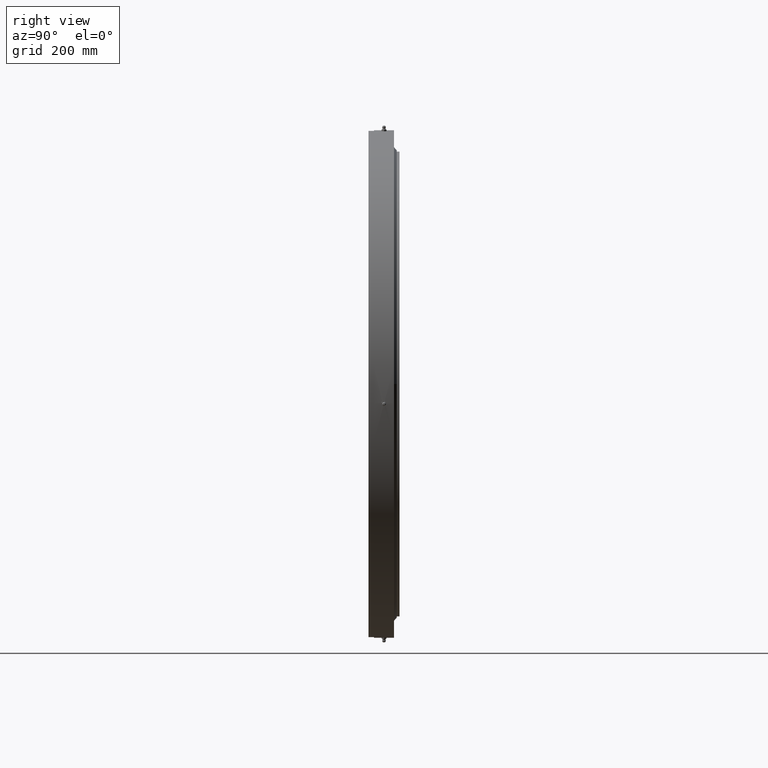
[diagram: clean part render]
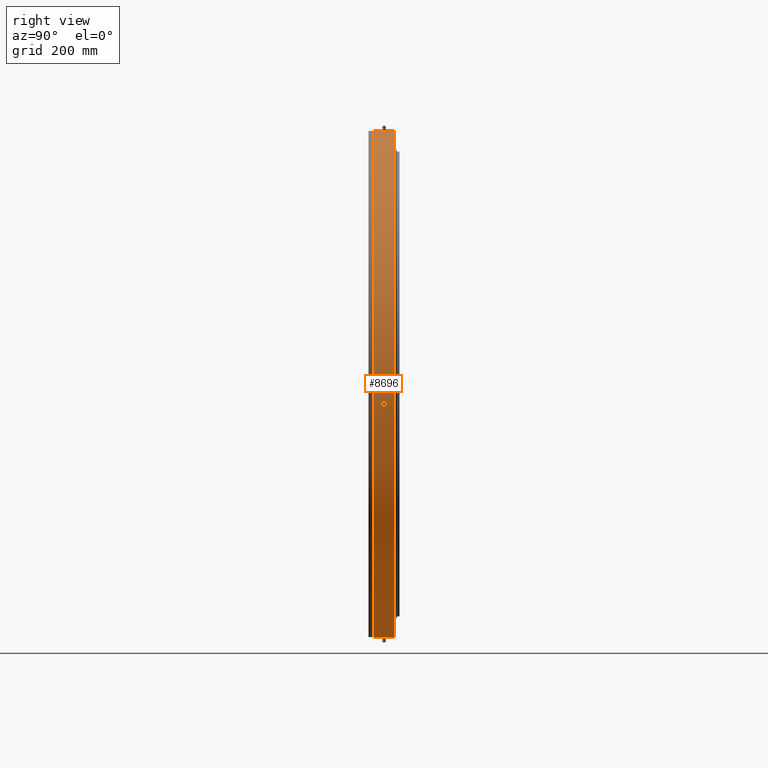
[diagram: same view with one face highlighted and labeled with its STEP entity id]
A machine part, right view. The second image highlights one B-rep face of the part: STEP entity #8696.
In plain terms, the highlighted cylindrical surface (partial cylindrical patch) has radius 458 mm, axis along (-0, 1, -0).
Its self-contained STEP definition (entity closure, byte-faithful):
#294 = CARTESIAN_POINT ( 'NONE',  ( 0.0000000000000000000, -18.00000000000005700, -2.297141635296116100E-015 ) ) ;
#314 = CARTESIAN_POINT ( 'NONE',  ( 33.63007289636212200, -2.638805930498227900, 456.7636641629059700 ) ) ;
#335 = CARTESIAN_POINT ( 'NONE',  ( 456.8165205205133400, 1.751985350448126600, -32.90414811253361200 ) ) ;
#401 = CARTESIAN_POINT ( 'NONE',  ( 38.56147788196833700, -2.313874280114101500, 456.3737925274480700 ) ) ;
#424 = CARTESIAN_POINT ( 'NONE',  ( 36.16308233546825300, -3.499918867989872100, 456.5701299794257600 ) ) ;
#529 = CARTESIAN_POINT ( 'NONE',  ( 37.47902702774766200, 3.146596247737587500, 456.4639827979106000 ) ) ;
#559 = CARTESIAN_POINT ( 'NONE',  ( 456.4985276661296300, 3.322150589918922800, -37.05589423200735400 ) ) ;
#569 = CARTESIAN_POINT ( 'NONE',  ( 33.30396047812804000, 2.311675416209404000, 456.7875569785331900 ) ) ;
#593 = EDGE_CURVE ( 'NONE', #2211, #6134, #6821, .T. ) ;
#639 = EDGE_CURVE ( 'NONE', #4509, #3712, #6229, .T. ) ;
#662 = B_SPLINE_CURVE_WITH_KNOTS ( 'NONE', 3,
 ( #9435, #1213, #2029, #6961, #1177, #6135, #335, #1746, #6683, #5859, #4729, #9661, #3910, #8819, #3088, #7989, #2259, #7181, #1393, #6355, #559, #5520, #10447, #4687, #9625, #3857, #8781, #3053, #7955, #2214, #7140, #1357 ),
 .UNSPECIFIED., .F., .F.,
 ( 4, 2, 2, 2, 2, 2, 2, 2, 2, 2, 2, 2, 2, 2, 2, 4 ),
 ( 0.01094264028078893000, 0.01162640092653727100, 0.01231016157228561100, 0.01299392221803395200, 0.01367768286378229200, 0.01436144350953063400, 0.01504520415527897300, 0.01572896480102731500, 0.01641272544677565400, 0.01709648609252399600, 0.01778024673827233900, 0.01846400738402067700, 0.01914776802976901600, 0.01983152867551735800, 0.02051528932126570100, 0.02188281061276238500 ),
 .UNSPECIFIED. ) ;
#688 = CARTESIAN_POINT ( 'NONE',  ( 456.4472106017494800, -3.037490623701535300, -37.68262919072881100 ) ) ;
#738 = EDGE_CURVE ( 'NONE', #6134, #2211, #5222, .T. ) ;
#824 = CARTESIAN_POINT ( 'NONE',  ( 456.3001996832415400, 6.997187067039027100E-009, -39.42242723417691500 ) ) ;
#849 = ORIENTED_EDGE ( 'NONE', *, *, #738, .T. ) ;
#1108 = DIRECTION ( 'NONE',  ( -0.0000000000000000000, 1.000000000000000000, -0.0000000000000000000 ) ) ;
#1114 = CARTESIAN_POINT ( 'NONE',  ( 32.44400589804343600, 6.997186051736657700E-009, 456.8494133533365600 ) ) ;
#1155 = CARTESIAN_POINT ( 'NONE',  ( 34.18465193305488000, -3.036912168861128200, 456.7225038716335300 ) ) ;
#1177 = CARTESIAN_POINT ( 'NONE',  ( 456.8367194834772200, 1.127687969078998700, -32.62237464594562700 ) ) ;
#1213 = CARTESIAN_POINT ( 'NONE',  ( 456.8494133533364400, 0.2283788053920517100, -32.44400589804503500 ) ) ;
#1357 = CARTESIAN_POINT ( 'NONE',  ( 456.3001996832415400, 6.997187067039027100E-009, -39.42242723417691500 ) ) ;
#1371 = CARTESIAN_POINT ( 'NONE',  ( 36.83482393395948400, 3.389072712100796200, 456.5164243995917600 ) ) ;
#1393 = CARTESIAN_POINT ( 'NONE',  ( 456.5521743773225000, 3.477621319007807800, -36.38903780224322300 ) ) ;
#1421 = EDGE_CURVE ( 'NONE', #7864, #2201, #8457, .T. ) ;
#1436 = AXIS2_PLACEMENT_3D ( 'NONE', #2732, #7651, #1900 ) ;
#1469 = DIRECTION ( 'NONE',  ( -0.0000000000000000000, 1.000000000000000000, -0.0000000000000000000 ) ) ;
#1537 = CARTESIAN_POINT ( 'NONE',  ( 456.4008741757257300, -2.636754973301240800, -38.23961472035456700 ) ) ;
#1596 = ORIENTED_EDGE ( 'NONE', *, *, #2850, .T. ) ;
#1628 = CARTESIAN_POINT ( 'NONE',  ( 39.42242723417532300, 6.997186012686878800E-009, 456.3001996832416600 ) ) ;
#1746 = CARTESIAN_POINT ( 'NONE',  ( 456.7980576167918800, 2.135340112929585500, -33.15947739344214500 ) ) ;
#1788 = CARTESIAN_POINT ( 'NONE',  ( 32.44400589804343600, 6.997186051736657700E-009, 456.8494133533365600 ) ) ;
#1874 = CARTESIAN_POINT ( 'NONE',  ( 0.0000000000000000000, 17.99999999999999600, 458.0000000000000600 ) ) ;
#1900 = DIRECTION ( 'NONE',  ( 0.0000000000000000000, 0.0000000000000000000, 1.000000000000000000 ) ) ;
#1970 = CARTESIAN_POINT ( 'NONE',  ( 32.46683833773523300, -0.4604141897430681400, 456.8477934815742900 ) ) ;
#2018 = CARTESIAN_POINT ( 'NONE',  ( 456.7071674364469800, -3.146551052262213800, -34.38906957822560200 ) ) ;
#2029 = CARTESIAN_POINT ( 'NONE',  ( 456.8478467209998800, 0.4553524808289428100, -32.46608919137686700 ) ) ;
#2123 = CARTESIAN_POINT ( 'NONE',  ( 36.83988223878230900, -3.387877818144095600, 456.5160173716268400 ) ) ;
#2201 = VERTEX_POINT ( 'NONE', #7490 ) ;
#2211 = VERTEX_POINT ( 'NONE', #7878 ) ;
#2214 = CARTESIAN_POINT ( 'NONE',  ( 456.3082216562515900, 0.9217468567132519600, -39.32985430323964900 ) ) ;
#2237 = CARTESIAN_POINT ( 'NONE',  ( 36.38903780224162400, 3.477621319007808200, 456.5521743773226700 ) ) ;
#2259 = CARTESIAN_POINT ( 'NONE',  ( 456.6064739588368300, 3.499804488246622800, -35.70127715019052800 ) ) ;
#2283 = CARTESIAN_POINT ( 'NONE',  ( 456.3737925274479000, -2.313874280114100100, -38.56147788196992800 ) ) ;
#2392 = CARTESIAN_POINT ( 'NONE',  ( 456.8163464086238200, -1.755852400395232900, -32.90656041679297800 ) ) ;
#2515 = FACE_OUTER_BOUND ( 'NONE', #10721, .T. ) ;
#2610 = CARTESIAN_POINT ( 'NONE',  ( 39.24416537009882000, -1.128299341885090000, 456.3155741411224500 ) ) ;
#2732 = CARTESIAN_POINT ( 'NONE',  ( 0.0000000000000000000, 17.99999999999999600, 0.0000000000000000000 ) ) ;
#2764 = AXIS2_PLACEMENT_3D ( 'NONE', #7756, #3618, #9515 ) ;
#2783 = CARTESIAN_POINT ( 'NONE',  ( 456.5160173716267300, -3.387877818144098300, -36.83988223878390800 ) ) ;
#2803 = CARTESIAN_POINT ( 'NONE',  ( 32.55606951202476300, -0.9088808497699746300, 456.8414433242238600 ) ) ;
#2825 = CARTESIAN_POINT ( 'NONE',  ( 456.3021547226748600, -0.4586430792446614100, -39.39981690613055300 ) ) ;
#2850 = EDGE_CURVE ( 'NONE', #5891, #3712, #5265, .T. ) ;
#2955 = CARTESIAN_POINT ( 'NONE',  ( 37.47956188346891100, -3.146205962783411800, 456.4639381137893100 ) ) ;
#3053 = CARTESIAN_POINT ( 'NONE',  ( 456.3399669074587500, 1.757443701697198200, -38.95960677233472300 ) ) ;
#3067 = CARTESIAN_POINT ( 'NONE',  ( 35.70127715018894300, 3.499804488246623300, 456.6064739588369400 ) ) ;
#3088 = CARTESIAN_POINT ( 'NONE',  ( 456.6585556972191300, 3.387789115033657900, -35.02875311164387300 ) ) ;
#3204 = CARTESIAN_POINT ( 'NONE',  ( 456.7875455133811300, -2.312152344299460700, -33.30412836870712600 ) ) ;
#3228 = CARTESIAN_POINT ( 'NONE',  ( 38.95960677233313900, 1.757443701697203800, 456.3399669074589700 ) ) ;
#3349 = CARTESIAN_POINT ( 'NONE',  ( 5.608882340094878600E-014, 17.99999999999999600, -458.0000000000000600 ) ) ;
#3390 = LINE ( 'NONE', #7685, #9962 ) ;
#3420 = CARTESIAN_POINT ( 'NONE',  ( 32.90414811253202000, 1.751985350448127300, 456.8165205205135100 ) ) ;
#3617 = CARTESIAN_POINT ( 'NONE',  ( 32.79730690667558700, -1.551319544392411900, 456.8241941677374000 ) ) ;
#3618 = DIRECTION ( 'NONE',  ( -0.0000000000000000000, 1.000000000000000000, -0.0000000000000000000 ) ) ;
#3667 = CARTESIAN_POINT ( 'NONE',  ( 456.6239699801806200, -3.477323823262290500, -35.47675887722286300 ) ) ;
#3712 = VERTEX_POINT ( 'NONE', #3349 ) ;
#3726 = CARTESIAN_POINT ( 'NONE',  ( 34.81162397259142700, -3.321849136376400700, 456.6751533975433400 ) ) ;
#3831 = CARTESIAN_POINT ( 'NONE',  ( 38.70473920086745100, 2.139167494881823600, 456.3616543053858000 ) ) ;
#3857 = CARTESIAN_POINT ( 'NONE',  ( 456.3738893026636600, 2.315193818555198100, -38.56033324178140700 ) ) ;
#3878 = CARTESIAN_POINT ( 'NONE',  ( 34.80682731284171200, 3.320201366540215500, 456.6755188749183400 ) ) ;
#3910 = CARTESIAN_POINT ( 'NONE',  ( 456.7074834383684600, 3.144459685235127200, -34.38487078141184100 ) ) ;
#4040 = CARTESIAN_POINT ( 'NONE',  ( 456.7506591448595300, -2.783476494714019400, -33.80638018621552000 ) ) ;
#4099 = CARTESIAN_POINT ( 'NONE',  ( 39.42242723417533800, 0.4624037073941965100, 456.3001996832417700 ) ) ;
#4242 = CARTESIAN_POINT ( 'NONE',  ( 32.62237464594402800, 1.127687969079001600, 456.8367194834772800 ) ) ;
#4338 = CARTESIAN_POINT ( 'NONE',  ( 456.3397665202251700, -1.753243271974080000, -38.96195102134183900 ) ) ;
#4400 = ORIENTED_EDGE ( 'NONE', *, *, #593, .T. ) ;
#4423 = CARTESIAN_POINT ( 'NONE',  ( 456.5701299794256400, -3.499918867989873400, -36.16308233546984500 ) ) ;
#4456 = CARTESIAN_POINT ( 'NONE',  ( 32.90656041679138600, -1.755852400395231600, 456.8163464086239300 ) ) ;
#4509 = VERTEX_POINT ( 'NONE', #1874 ) ;
#4527 = CARTESIAN_POINT ( 'NONE',  ( 456.8367421668295900, -1.127091556130833700, -32.62205885180947000 ) ) ;
#4557 = CARTESIAN_POINT ( 'NONE',  ( 36.38948680085663800, -3.477719932774610400, 456.5521397284094300 ) ) ;
#4565 = CARTESIAN_POINT ( 'NONE',  ( 456.8494133533365600, -0.2284303521984206400, -32.44400589804503500 ) ) ;
#4663 = CARTESIAN_POINT ( 'NONE',  ( 38.23813310696381500, 2.638068616937881700, 456.4009983703489900 ) ) ;
#4681 = FACE_BOUND ( 'NONE', #5763, .T. ) ;
#4687 = CARTESIAN_POINT ( 'NONE',  ( 456.4160281309156100, 2.785761149662884200, -38.05844740640844700 ) ) ;
#4703 = CARTESIAN_POINT ( 'NONE',  ( 456.3305972500694500, -1.552195923161918900, -39.06908922323194100 ) ) ;
#4706 = CARTESIAN_POINT ( 'NONE',  ( 34.18449619050549200, 3.036884674804790900, 456.7225158022299600 ) ) ;
#4729 = CARTESIAN_POINT ( 'NONE',  ( 456.7507680565551600, 2.782415929731926000, -33.80491236882476600 ) ) ;
#4824 = CARTESIAN_POINT ( 'NONE',  ( 5.608882340094878600E-014, 22.16364734299516900, -458.0000000000000600 ) ) ;
#4944 = CARTESIAN_POINT ( 'NONE',  ( 456.3097957316271000, -0.9060073050638746100, -39.31122353925483300 ) ) ;
#5013 = CARTESIAN_POINT ( 'NONE',  ( 38.23961472035296800, -2.636754973301240300, 456.4008741757257900 ) ) ;
#5070 = CARTESIAN_POINT ( 'NONE',  ( 32.46608919137528900, 0.4553524808289438100, 456.8478467210000000 ) ) ;
#5083 = CARTESIAN_POINT ( 'NONE',  ( 39.31122353925324800, -0.9060073050638720600, 456.3097957316270500 ) ) ;
#5222 = B_SPLINE_CURVE_WITH_KNOTS ( 'NONE', 3,
 ( #1788, #8365, #5070, #10011, #4242, #9161, #3420, #6366, #569, #5531, #10462, #4706, #9637, #3878, #8790, #7158, #3067, #7969, #2237, #1371, #6324, #529, #5497, #10424, #4663, #9603, #3831, #3228, #9820, #7363, #4099, #1628 ),
 .UNSPECIFIED., .F., .F.,
 ( 4, 2, 2, 2, 2, 2, 2, 2, 2, 2, 2, 2, 2, 2, 2, 4 ),
 ( 0.01094264028078893700, 0.01162640092653727800, 0.01231016157228561800, 0.01299392221803396000, 0.01367768286378230100, 0.01436144350953064100, 0.01504520415527898400, 0.01572896480102732200, 0.01641272544677566500, 0.01709648609252400700, 0.01778024673827234600, 0.01846400738402068800, 0.01914776802976903000, 0.01983152867551736900, 0.02051528932126570800, 0.02188281061276239900 ),
 .UNSPECIFIED. ) ;
#5248 = DIRECTION ( 'NONE',  ( 0.0000000000000000000, 5.302648179841768600E-017, 1.000000000000000000 ) ) ;
#5265 = LINE ( 'NONE', #4824, #8233 ) ;
#5266 = CARTESIAN_POINT ( 'NONE',  ( 33.30412836870553400, -2.312152344299463400, 456.7875455133812500 ) ) ;
#5395 = CARTESIAN_POINT ( 'NONE',  ( 35.70792254843622300, -3.500080678401593200, 456.6059530719090300 ) ) ;
#5408 = CARTESIAN_POINT ( 'NONE',  ( 5.608882340094877400E-014, -18.00000000000008200, -458.0000000000000000 ) ) ;
#5433 = CARTESIAN_POINT ( 'NONE',  ( 39.42242723417531600, -0.2312540413589992100, 456.3001996832416600 ) ) ;
#5497 = CARTESIAN_POINT ( 'NONE',  ( 37.67946655986254700, 3.039195355610949900, 456.4474711875959100 ) ) ;
#5520 = CARTESIAN_POINT ( 'NONE',  ( 456.4639827979102600, 3.146596247737586200, -37.47902702774925400 ) ) ;
#5530 = CARTESIAN_POINT ( 'NONE',  ( 456.3001996832414900, -0.2312540413589989400, -39.42242723417690100 ) ) ;
#5531 = CARTESIAN_POINT ( 'NONE',  ( 33.62555132761696100, 2.634578759227600200, 456.7639962736329800 ) ) ;
#5555 = CARTESIAN_POINT ( 'NONE',  ( 39.39981690612896200, -0.4586430792446587500, 456.3021547226750800 ) ) ;
#5570 = ORIENTED_EDGE ( 'NONE', *, *, #6684, .F. ) ;
#5611 = CARTESIAN_POINT ( 'NONE',  ( 34.38906957822401000, -3.146551052262212400, 456.7071674364469800 ) ) ;
#5650 = CARTESIAN_POINT ( 'NONE',  ( 456.4639381137891400, -3.146205962783413600, -37.47956188347050200 ) ) ;
#5738 = EDGE_LOOP ( 'NONE', ( #9718, #7752 ) ) ;
#5763 = EDGE_LOOP ( 'NONE', ( #4400, #849 ) ) ;
#5859 = CARTESIAN_POINT ( 'NONE',  ( 456.7639962736327600, 2.634578759227601500, -33.62555132761854500 ) ) ;
#5870 = CARTESIAN_POINT ( 'NONE',  ( 0.0000000000000000000, -18.00000000000003200, 458.0000000000000000 ) ) ;
#5891 = VERTEX_POINT ( 'NONE', #5408 ) ;
#6011 = CARTESIAN_POINT ( 'NONE',  ( 32.44400589804343600, 6.997186051736657700E-009, 456.8494133533365600 ) ) ;
#6043 = CARTESIAN_POINT ( 'NONE',  ( 456.3001996832415400, 6.997187067039027100E-009, -39.42242723417691500 ) ) ;
#6091 = DIRECTION ( 'NONE',  ( -0.0000000000000000000, 1.000000000000000000, -5.328613396463909800E-017 ) ) ;
#6109 = CARTESIAN_POINT ( 'NONE',  ( 33.80638018621392900, -2.783476494714015800, 456.7506591448596400 ) ) ;
#6134 = VERTEX_POINT ( 'NONE', #6011 ) ;
#6135 = CARTESIAN_POINT ( 'NONE',  ( 456.8242706873491000, 1.548902305254154200, -32.79623921941637800 ) ) ;
#6198 = CARTESIAN_POINT ( 'NONE',  ( 456.8414433242238000, -0.9088808497699751900, -32.55606951202636900 ) ) ;
#6199 = CARTESIAN_POINT ( 'NONE',  ( 38.70881775483805100, -2.133730996184352700, 456.3613081355010800 ) ) ;
#6229 = CIRCLE ( 'NONE', #1436, 458.0000000000000600 ) ;
#6324 = CARTESIAN_POINT ( 'NONE',  ( 37.05589423200576200, 3.322150589918922800, 456.4985276661296300 ) ) ;
#6355 = CARTESIAN_POINT ( 'NONE',  ( 456.5164243995918100, 3.389072712100795300, -36.83482393396109700 ) ) ;
#6366 = CARTESIAN_POINT ( 'NONE',  ( 33.15947739344055400, 2.135340112929587300, 456.7980576167921100 ) ) ;
#6457 = ORIENTED_EDGE ( 'NONE', *, *, #639, .F. ) ;
#6470 = CARTESIAN_POINT ( 'NONE',  ( 456.4155666461468900, -2.781636763996913500, -38.06398733606938100 ) ) ;
#6683 = CARTESIAN_POINT ( 'NONE',  ( 456.7875569785329600, 2.311675416209406200, -33.30396047812962500 ) ) ;
#6684 = EDGE_CURVE ( 'NONE', #9886, #4509, #3390, .T. ) ;
#6708 = CARTESIAN_POINT ( 'NONE',  ( 38.96195102134024800, -1.753243271974082500, 456.3397665202252800 ) ) ;
#6821 = B_SPLINE_CURVE_WITH_KNOTS ( 'NONE', 3,
 ( #10369, #5433, #5555, #5083, #2610, #7533, #6708, #6199, #401, #5013, #7843, #8864, #2955, #7055, #2123, #4557, #424, #5395, #10323, #9492, #3726, #5611, #1155, #6109, #314, #5266, #10215, #4456, #3617, #8540, #2803, #1970, #6911, #1114 ),
 .UNSPECIFIED., .F., .F.,
 ( 4, 2, 2, 2, 2, 2, 2, 2, 2, 2, 2, 2, 2, 2, 2, 2, 4 ),
 ( 3.785959441707307000E-019, 0.0006839150175493089000, 0.001367830035098617600, 0.002051745052647926200, 0.002735660070197234700, 0.003419575087746543300, 0.004103490105295851500, 0.004787405122845160000, 0.005471320140394468600, 0.006155235157943777200, 0.006839150175493085800, 0.007523065193042394400, 0.008206980210591702900, 0.008890895228141012400, 0.009574810245690320100, 0.01025872526323962800, 0.01094264028078893700 ),
 .UNSPECIFIED. ) ;
#6911 = CARTESIAN_POINT ( 'NONE',  ( 32.44400589804343600, -0.2284303521984206400, 456.8494133533367300 ) ) ;
#6952 = CARTESIAN_POINT ( 'NONE',  ( 456.7225038716335900, -3.036912168861131800, -34.18465193305648600 ) ) ;
#6961 = CARTESIAN_POINT ( 'NONE',  ( 456.8414961303569200, 0.9064318402242987900, -32.55532850968555200 ) ) ;
#6975 = AXIS2_PLACEMENT_3D ( 'NONE', #294, #6091, #5248 ) ;
#7055 = CARTESIAN_POINT ( 'NONE',  ( 37.05973526116000000, -3.320723582451663900, 456.4982150892802800 ) ) ;
#7140 = CARTESIAN_POINT ( 'NONE',  ( 456.3001996832415400, 0.4624037073941954500, -39.42242723417690100 ) ) ;
#7158 = CARTESIAN_POINT ( 'NONE',  ( 35.47480065249835900, 3.477013548249892500, 456.6241217398530800 ) ) ;
#7181 = CARTESIAN_POINT ( 'NONE',  ( 456.5702661034831600, 3.500193044977185400, -36.16137941881140000 ) ) ;
#7310 = CARTESIAN_POINT ( 'NONE',  ( 456.8241941677373500, -1.551319544392411700, -32.79730690667717900 ) ) ;
#7363 = CARTESIAN_POINT ( 'NONE',  ( 39.32985430323805800, 0.9217468567132568500, 456.3082216562518200 ) ) ;
#7490 = CARTESIAN_POINT ( 'NONE',  ( 456.8494133533364400, 6.997186051736656900E-009, -32.44400589804502700 ) ) ;
#7533 = CARTESIAN_POINT ( 'NONE',  ( 39.06908922323034300, -1.552195923161916000, 456.3305972500694500 ) ) ;
#7651 = DIRECTION ( 'NONE',  ( -0.0000000000000000000, 1.000000000000000000, -0.0000000000000000000 ) ) ;
#7685 = CARTESIAN_POINT ( 'NONE',  ( 0.0000000000000000000, 22.16364734299516900, 458.0000000000000600 ) ) ;
#7752 = ORIENTED_EDGE ( 'NONE', *, *, #10718, .T. ) ;
#7756 = CARTESIAN_POINT ( 'NONE',  ( 0.0000000000000000000, 22.16364734299516900, 0.0000000000000000000 ) ) ;
#7766 = CARTESIAN_POINT ( 'NONE',  ( 456.6751533975432300, -3.321849136376401600, -34.81162397259301900 ) ) ;
#7843 = CARTESIAN_POINT ( 'NONE',  ( 38.06398733606778300, -2.781636763996909500, 456.4155666461469400 ) ) ;
#7864 = VERTEX_POINT ( 'NONE', #6043 ) ;
#7878 = CARTESIAN_POINT ( 'NONE',  ( 39.42242723417532300, 6.997186012686878800E-009, 456.3001996832416600 ) ) ;
#7955 = CARTESIAN_POINT ( 'NONE',  ( 456.3306508477437000, 1.553250492096155400, -39.06846227490793000 ) ) ;
#7969 = CARTESIAN_POINT ( 'NONE',  ( 36.16137941880981500, 3.500193044977184100, 456.5702661034832200 ) ) ;
#7989 = CARTESIAN_POINT ( 'NONE',  ( 456.6241217398528500, 3.477013548249892900, -35.47480065249995100 ) ) ;
#8045 = CIRCLE ( 'NONE', #6975, 458.0000000000000000 ) ;
#8123 = CARTESIAN_POINT ( 'NONE',  ( 456.7980634271249900, -2.134965236220815100, -33.15939254293064000 ) ) ;
#8233 = VECTOR ( 'NONE', #1469, 1000.000000000000000 ) ;
#8305 = EDGE_CURVE ( 'NONE', #9886, #5891, #8045, .T. ) ;
#8365 = CARTESIAN_POINT ( 'NONE',  ( 32.44400589804343600, 0.2283788053920518300, 456.8494133533366200 ) ) ;
#8457 = B_SPLINE_CURVE_WITH_KNOTS ( 'NONE', 3,
 ( #824, #5530, #2825, #4944, #10456, #4703, #4338, #10103, #2283, #1537, #6470, #688, #5650, #9386, #2783, #10186, #4423, #9348, #3667, #10473, #7766, #2018, #6952, #4040, #8946, #3204, #8123, #2392, #7310, #4527, #6198, #10165, #4565, #10294 ),
 .UNSPECIFIED., .F., .F.,
 ( 4, 2, 2, 2, 2, 2, 2, 2, 2, 2, 2, 2, 2, 2, 2, 2, 4 ),
 ( 2.547406273263789700E-018, 0.0006839150175493108500, 0.001367830035098619300, 0.002051745052647927500, 0.002735660070197235200, 0.003419575087746542900, 0.004103490105295850600, 0.004787405122845158300, 0.005471320140394466000, 0.006155235157943773700, 0.006839150175493081400, 0.007523065193042390900, 0.008206980210591697700, 0.008890895228141005400, 0.009574810245690314900, 0.01025872526323962400, 0.01094264028078893000 ),
 .UNSPECIFIED. ) ;
#8540 = CARTESIAN_POINT ( 'NONE',  ( 32.62205885180787100, -1.127091556130835400, 456.8367421668297100 ) ) ;
#8696 = ADVANCED_FACE ( 'NONE', ( #4681, #9711, #2515 ), #10350, .T. ) ;
#8781 = CARTESIAN_POINT ( 'NONE',  ( 456.3616543053857400, 2.139167494881820900, -38.70473920086904200 ) ) ;
#8790 = CARTESIAN_POINT ( 'NONE',  ( 35.02875311164227400, 3.387789115033657400, 456.6585556972193600 ) ) ;
#8819 = CARTESIAN_POINT ( 'NONE',  ( 456.6755188749184000, 3.320201366540216400, -34.80682731284331100 ) ) ;
#8864 = CARTESIAN_POINT ( 'NONE',  ( 37.68262919072721200, -3.037490623701531800, 456.4472106017497000 ) ) ;
#8946 = CARTESIAN_POINT ( 'NONE',  ( 456.7636641629058500, -2.638805930498224800, -33.63007289636370700 ) ) ;
#9088 = ORIENTED_EDGE ( 'NONE', *, *, #8305, .T. ) ;
#9161 = CARTESIAN_POINT ( 'NONE',  ( 32.79623921941479400, 1.548902305254156800, 456.8242706873492700 ) ) ;
#9348 = CARTESIAN_POINT ( 'NONE',  ( 456.6059530719090800, -3.500080678401594500, -35.70792254843781400 ) ) ;
#9386 = CARTESIAN_POINT ( 'NONE',  ( 456.4982150892801700, -3.320723582451665200, -37.05973526116158500 ) ) ;
#9435 = CARTESIAN_POINT ( 'NONE',  ( 456.8494133533364400, 6.997186051736656900E-009, -32.44400589804502700 ) ) ;
#9492 = CARTESIAN_POINT ( 'NONE',  ( 35.02917690407920000, -3.387954862980220300, 456.6585235669164700 ) ) ;
#9515 = DIRECTION ( 'NONE',  ( 0.0000000000000000000, 0.0000000000000000000, 1.000000000000000000 ) ) ;
#9603 = CARTESIAN_POINT ( 'NONE',  ( 38.56033324177979400, 2.315193818555202100, 456.3738893026637100 ) ) ;
#9625 = CARTESIAN_POINT ( 'NONE',  ( 456.4009983703489300, 2.638068616937880000, -38.23813310696540700 ) ) ;
#9637 = CARTESIAN_POINT ( 'NONE',  ( 34.38487078141025000, 3.144459685235125400, 456.7074834383685700 ) ) ;
#9661 = CARTESIAN_POINT ( 'NONE',  ( 456.7225158022300200, 3.036884674804790000, -34.18449619050709700 ) ) ;
#9711 = FACE_BOUND ( 'NONE', #5738, .T. ) ;
#9718 = ORIENTED_EDGE ( 'NONE', *, *, #1421, .T. ) ;
#9820 = CARTESIAN_POINT ( 'NONE',  ( 39.06846227490633100, 1.553250492096161000, 456.3306508477438100 ) ) ;
#9886 = VERTEX_POINT ( 'NONE', #5870 ) ;
#9962 = VECTOR ( 'NONE', #1108, 1000.000000000000000 ) ;
#10011 = CARTESIAN_POINT ( 'NONE',  ( 32.55532850968396700, 0.9064318402242990100, 456.8414961303570900 ) ) ;
#10103 = CARTESIAN_POINT ( 'NONE',  ( 456.3613081355009100, -2.133730996184349600, -38.70881775483962200 ) ) ;
#10165 = CARTESIAN_POINT ( 'NONE',  ( 456.8477934815742300, -0.4604141897430689100, -32.46683833773681700 ) ) ;
#10186 = CARTESIAN_POINT ( 'NONE',  ( 456.5521397284093700, -3.477719932774611300, -36.38948680085822900 ) ) ;
#10215 = CARTESIAN_POINT ( 'NONE',  ( 33.15939254292904800, -2.134965236220814200, 456.7980634271251600 ) ) ;
#10294 = CARTESIAN_POINT ( 'NONE',  ( 456.8494133533364400, 6.997186051736656900E-009, -32.44400589804502700 ) ) ;
#10323 = CARTESIAN_POINT ( 'NONE',  ( 35.47675887722125800, -3.477323823262290100, 456.6239699801805600 ) ) ;
#10350 = CYLINDRICAL_SURFACE ( 'NONE', #2764, 458.0000000000000600 ) ;
#10369 = CARTESIAN_POINT ( 'NONE',  ( 39.42242723417532300, 6.997186012686878800E-009, 456.3001996832416600 ) ) ;
#10424 = CARTESIAN_POINT ( 'NONE',  ( 38.05844740640685600, 2.785761149662882000, 456.4160281309157200 ) ) ;
#10447 = CARTESIAN_POINT ( 'NONE',  ( 456.4474711875957400, 3.039195355610951700, -37.67946655986413900 ) ) ;
#10456 = CARTESIAN_POINT ( 'NONE',  ( 456.3155741411222300, -1.128299341885092200, -39.24416537010040400 ) ) ;
#10462 = CARTESIAN_POINT ( 'NONE',  ( 33.80491236882319600, 2.782415929731930400, 456.7507680565553300 ) ) ;
#10473 = CARTESIAN_POINT ( 'NONE',  ( 456.6585235669164100, -3.387954862980222100, -35.02917690408079200 ) ) ;
#10718 = EDGE_CURVE ( 'NONE', #2201, #7864, #662, .T. ) ;
#10721 = EDGE_LOOP ( 'NONE', ( #9088, #1596, #6457, #5570 ) ) ;